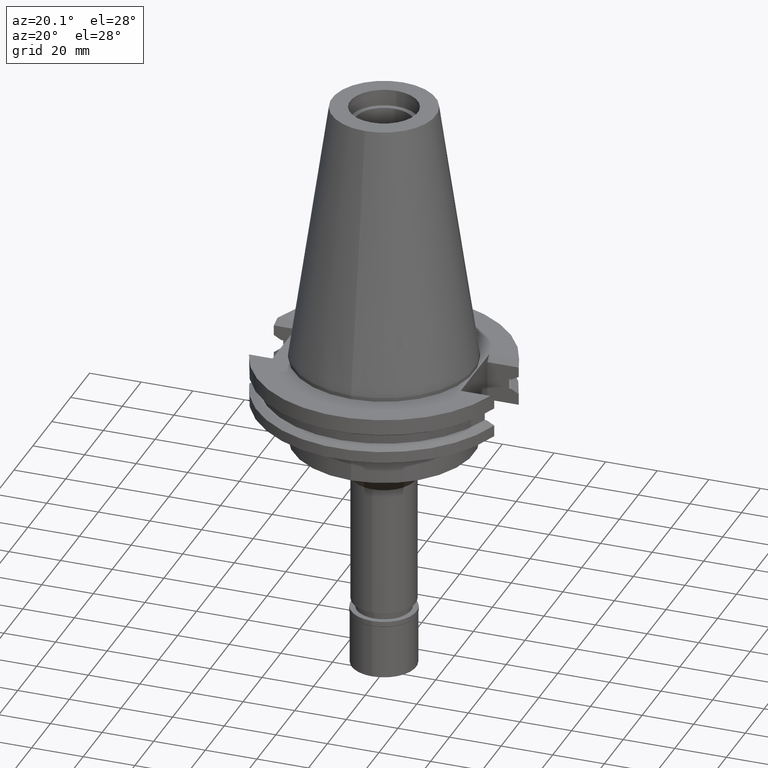
[diagram: clean part render]
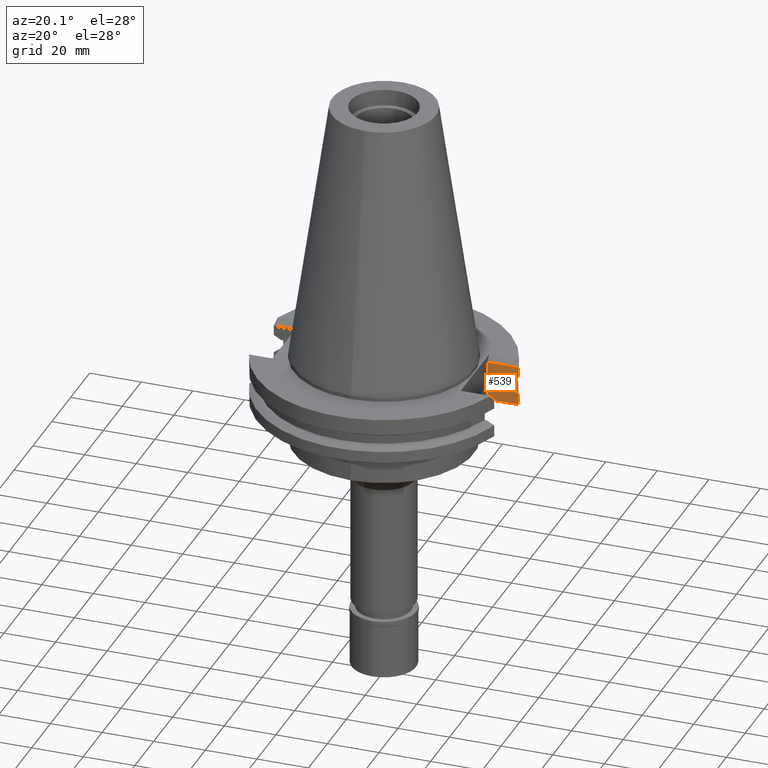
[diagram: same view with one face highlighted and labeled with its STEP entity id]
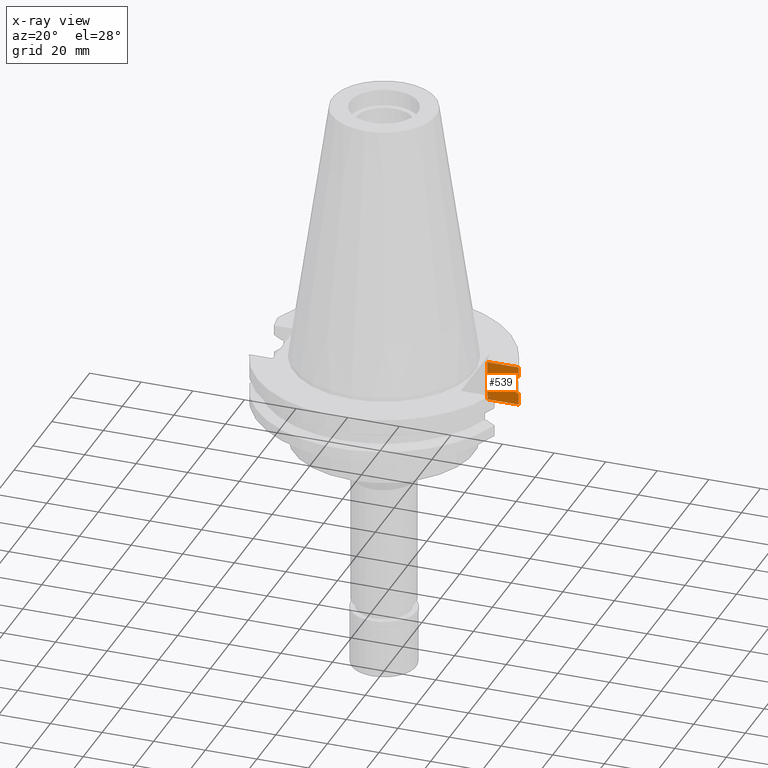
[diagram: x-ray of the same camera — body ghosted, the highlighted face saturated]
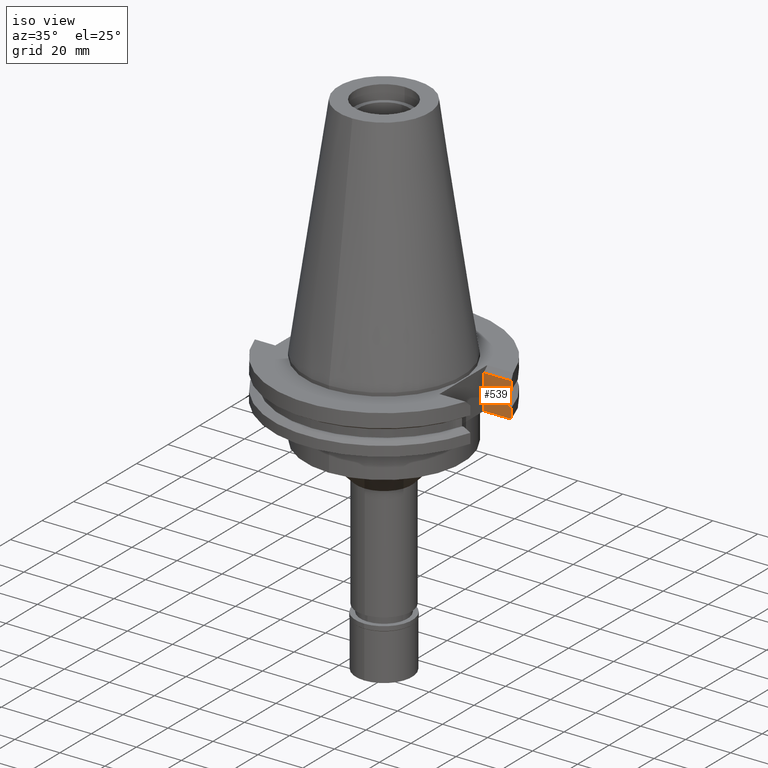
[diagram: same view with one face highlighted and labeled with its STEP entity id]
A machine part, auxiliary view. The second image highlights one B-rep face of the part: STEP entity #539.
The next image is the same camera in x-ray: the body ghosted, the highlighted face saturated — about 2% of this face is hidden behind the body in this view.
A second angle (iso view) of the same face is appended — the face is thin or edge-on in the first view.
In plain terms, the highlighted planar face has unit normal (0, 1, 0).
Its self-contained STEP definition (entity closure, byte-faithful):
#6 = CARTESIAN_POINT ( 'NONE',  ( 47.47671146204000081, 12.95500000000000007, -7.601333230924999462 ) ) ;
#69 = VECTOR ( 'NONE', #2636, 1000.000000000000000 ) ;
#85 = VERTEX_POINT ( 'NONE', #2287 ) ;
#102 = LINE ( 'NONE', #3190, #2111 ) ;
#126 = AXIS2_PLACEMENT_3D ( 'NONE', #2461, #147, #1201 ) ;
#132 = DIRECTION ( 'NONE',  ( 1.000000000000000000, -2.864321511922000097E-13, -1.037231577802000124E-12 ) ) ;
#147 = DIRECTION ( 'NONE',  ( -0.0000000000000000000, 1.000000000000000000, 0.0000000000000000000 ) ) ;
#150 = DIRECTION ( 'NONE',  ( 0.0000000000000000000, 0.0000000000000000000, 1.000000000000000000 ) ) ;
#163 = VECTOR ( 'NONE', #737, 1000.000000000000000 ) ;
#217 = CARTESIAN_POINT ( 'NONE',  ( 35.27000000000000313, 12.95500000000000007, -19.05000000000000071 ) ) ;
#283 = CARTESIAN_POINT ( 'NONE',  ( 35.27000000000000313, 12.95500000000000007, -19.05000000000000071 ) ) ;
#293 = LINE ( 'NONE', #2319, #3306 ) ;
#304 = CARTESIAN_POINT ( 'NONE',  ( 35.27000000000000313, 12.95500000000000007, -3.700000000000000178 ) ) ;
#392 = DIRECTION ( 'NONE',  ( 1.000000000000000000, -3.840794754624000361E-13, 4.339881078670999989E-13 ) ) ;
#452 = CARTESIAN_POINT ( 'NONE',  ( 43.76795631508999662, 12.95500000000000007, -13.04749999999999943 ) ) ;
#462 = CARTESIAN_POINT ( 'NONE',  ( 44.58657636813000380, 12.95500000000000007, -13.04749999999999943 ) ) ;
#468 = VERTEX_POINT ( 'NONE', #2145 ) ;
#539 = ADVANCED_FACE ( 'NONE', ( #1425 ), #2741, .F. ) ;
#605 = ORIENTED_EDGE ( 'NONE', *, *, #1527, .T. ) ;
#656 = ORIENTED_EDGE ( 'NONE', *, *, #2239, .F. ) ;
#674 = VERTEX_POINT ( 'NONE', #795 ) ;
#684 = VERTEX_POINT ( 'NONE', #6 ) ;
#737 = DIRECTION ( 'NONE',  ( 1.000000000000000000, 1.455229645530999953E-14, 0.0000000000000000000 ) ) ;
#795 = CARTESIAN_POINT ( 'NONE',  ( 47.47671146204000081, 12.95500000000000007, -3.700000000000000178 ) ) ;
#830 = DIRECTION ( 'NONE',  ( 0.0000000000000000000, 0.0000000000000000000, -1.000000000000000000 ) ) ;
#838 = ORIENTED_EDGE ( 'NONE', *, *, #2454, .T. ) ;
#911 = CARTESIAN_POINT ( 'NONE',  ( 47.47671146204000081, 12.95500000000000007, -19.05000000000000071 ) ) ;
#976 = CARTESIAN_POINT ( 'NONE',  ( 44.58657636813000380, 12.95500000000000007, -9.207500000000999663 ) ) ;
#1041 = EDGE_LOOP ( 'NONE', ( #2875, #3261, #656, #2577, #2525, #605, #2386, #1560, #838, #2464 ) ) ;
#1083 = EDGE_CURVE ( 'NONE', #3061, #85, #3247, .T. ) ;
#1084 = CARTESIAN_POINT ( 'NONE',  ( 46.48531137229106491, 12.95500000000000007, -8.153529576370974752 ) ) ;
#1178 = VECTOR ( 'NONE', #830, 1000.000000000000000 ) ;
#1201 = DIRECTION ( 'NONE',  ( 1.000000000000000000, 0.0000000000000000000, 0.0000000000000000000 ) ) ;
#1320 = DIRECTION ( 'NONE',  ( -2.258389479161999877E-13, -3.642563676067000065E-14, 1.000000000000000000 ) ) ;
#1338 = EDGE_CURVE ( 'NONE', #1563, #3061, #2069, .T. ) ;
#1350 = VERTEX_POINT ( 'NONE', #462 ) ;
#1370 = EDGE_CURVE ( 'NONE', #85, #1350, #2564, .T. ) ;
#1425 = FACE_OUTER_BOUND ( 'NONE', #1041, .T. ) ;
#1457 = DIRECTION ( 'NONE',  ( 1.341459893287999999E-13, 4.848650216702999599E-14, 1.000000000000000000 ) ) ;
#1527 = EDGE_CURVE ( 'NONE', #2983, #684, #2868, .T. ) ;
#1560 = ORIENTED_EDGE ( 'NONE', *, *, #3175, .T. ) ;
#1563 = VERTEX_POINT ( 'NONE', #283 ) ;
#1621 = VERTEX_POINT ( 'NONE', #2262 ) ;
#1678 = LINE ( 'NONE', #2706, #2528 ) ;
#1747 = CARTESIAN_POINT ( 'NONE',  ( 47.47671146204000081, 12.95500000000000007, -14.65366676908000088 ) ) ;
#1835 = EDGE_CURVE ( 'NONE', #684, #674, #293, .T. ) ;
#1850 = LINE ( 'NONE', #304, #1178 ) ;
#1855 = CARTESIAN_POINT ( 'NONE',  ( 47.47671146204000081, 12.95500000000000007, -19.05000000000000071 ) ) ;
#1952 = LINE ( 'NONE', #452, #2314 ) ;
#2032 = CARTESIAN_POINT ( 'NONE',  ( 46.48531138143672337, 12.95500000000000007, -14.10147042870506517 ) ) ;
#2069 = LINE ( 'NONE', #217, #163 ) ;
#2109 = CARTESIAN_POINT ( 'NONE',  ( 47.47671146204000081, 12.95500000000000007, -3.700000000000000178 ) ) ;
#2111 = VECTOR ( 'NONE', #132, 1000.000000000000000 ) ;
#2145 = CARTESIAN_POINT ( 'NONE',  ( 43.76795631508999662, 12.95500000000000007, -9.207499999999999574 ) ) ;
#2239 = EDGE_CURVE ( 'NONE', #2661, #1350, #1678, .T. ) ;
#2261 = CARTESIAN_POINT ( 'NONE',  ( 43.76795631508999662, 12.95500000000000007, -13.04749999999999943 ) ) ;
#2262 = CARTESIAN_POINT ( 'NONE',  ( 35.27000000000000313, 12.95500000000000007, -3.700000000000000178 ) ) ;
#2287 = CARTESIAN_POINT ( 'NONE',  ( 47.47671146204000081, 12.95500000000000007, -14.65366676908000088 ) ) ;
#2314 = VECTOR ( 'NONE', #150, 1000.000000000000000 ) ;
#2319 = CARTESIAN_POINT ( 'NONE',  ( 47.47671146204000081, 12.95500000000000007, -7.601333230924999462 ) ) ;
#2386 = ORIENTED_EDGE ( 'NONE', *, *, #1835, .T. ) ;
#2454 = EDGE_CURVE ( 'NONE', #1621, #1563, #1850, .T. ) ;
#2461 = CARTESIAN_POINT ( 'NONE',  ( 35.27000000000000313, 12.95500000000000007, -19.05000000000000071 ) ) ;
#2464 = ORIENTED_EDGE ( 'NONE', *, *, #1338, .T. ) ;
#2525 = ORIENTED_EDGE ( 'NONE', *, *, #3319, .T. ) ;
#2528 = VECTOR ( 'NONE', #392, 1000.000000000000000 ) ;
#2536 = VECTOR ( 'NONE', #1457, 1000.000000000000000 ) ;
#2543 = EDGE_CURVE ( 'NONE', #2661, #468, #1952, .T. ) ;
#2564 = B_SPLINE_CURVE_WITH_KNOTS ( 'NONE', 3,
 ( #1747, #2032, #2567, #2769 ),
 .UNSPECIFIED., .F., .F.,
 ( 4, 4 ),
 ( 0.0000000000000000000, 1.000000000000000000 ),
 .UNSPECIFIED. ) ;
#2567 = CARTESIAN_POINT ( 'NONE',  ( 45.52193301680005533, 12.95500000000000007, -13.56608150567839921 ) ) ;
#2577 = ORIENTED_EDGE ( 'NONE', *, *, #2543, .T. ) ;
#2609 = LINE ( 'NONE', #2109, #69 ) ;
#2636 = DIRECTION ( 'NONE',  ( -1.000000000000000000, -1.455229645530999953E-14, 0.0000000000000000000 ) ) ;
#2661 = VERTEX_POINT ( 'NONE', #2261 ) ;
#2694 = CARTESIAN_POINT ( 'NONE',  ( 45.52193300765439687, 12.95500000000000007, -8.688918499396308448 ) ) ;
#2706 = CARTESIAN_POINT ( 'NONE',  ( 43.76795631508999662, 12.95500000000000007, -13.04749999999999943 ) ) ;
#2741 = PLANE ( 'NONE',  #126 ) ;
#2769 = CARTESIAN_POINT ( 'NONE',  ( 44.58657636813000380, 12.95500000000000007, -13.04749999999999943 ) ) ;
#2868 = B_SPLINE_CURVE_WITH_KNOTS ( 'NONE', 3,
 ( #2933, #2694, #1084, #2901 ),
 .UNSPECIFIED., .F., .F.,
 ( 4, 4 ),
 ( 0.0000000000000000000, 1.000000000000000000 ),
 .UNSPECIFIED. ) ;
#2875 = ORIENTED_EDGE ( 'NONE', *, *, #1083, .T. ) ;
#2901 = CARTESIAN_POINT ( 'NONE',  ( 47.47671146204000081, 12.95500000000000007, -7.601333230924999462 ) ) ;
#2933 = CARTESIAN_POINT ( 'NONE',  ( 44.58657636813000380, 12.95500000000000007, -9.207500000000999663 ) ) ;
#2983 = VERTEX_POINT ( 'NONE', #976 ) ;
#3061 = VERTEX_POINT ( 'NONE', #1855 ) ;
#3175 = EDGE_CURVE ( 'NONE', #674, #1621, #2609, .T. ) ;
#3190 = CARTESIAN_POINT ( 'NONE',  ( 43.76795631508999662, 12.95500000000000007, -9.207499999999999574 ) ) ;
#3247 = LINE ( 'NONE', #911, #2536 ) ;
#3261 = ORIENTED_EDGE ( 'NONE', *, *, #1370, .T. ) ;
#3306 = VECTOR ( 'NONE', #1320, 1000.000000000000000 ) ;
#3319 = EDGE_CURVE ( 'NONE', #468, #2983, #102, .T. ) ;